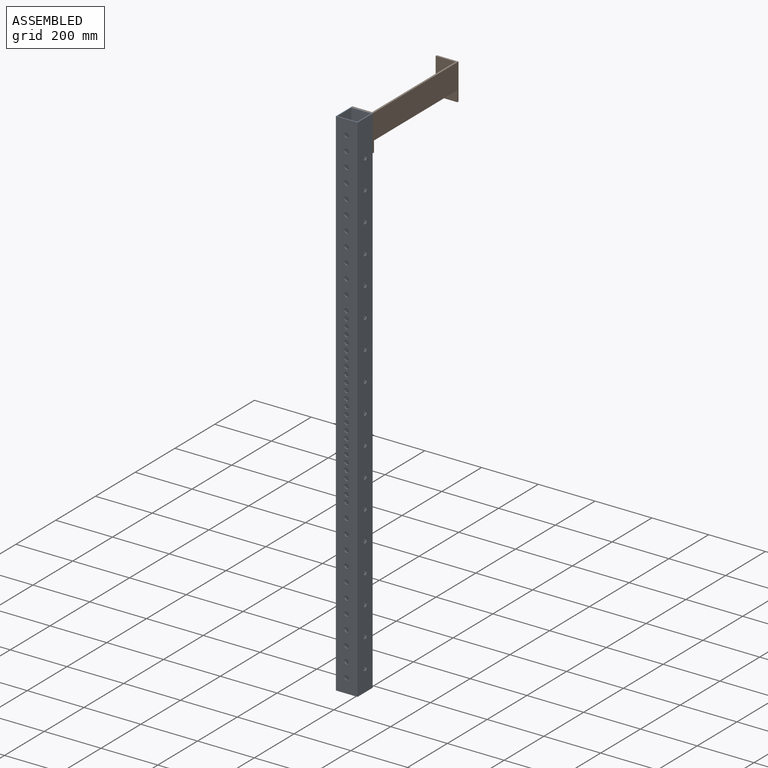
[diagram: assembled view]
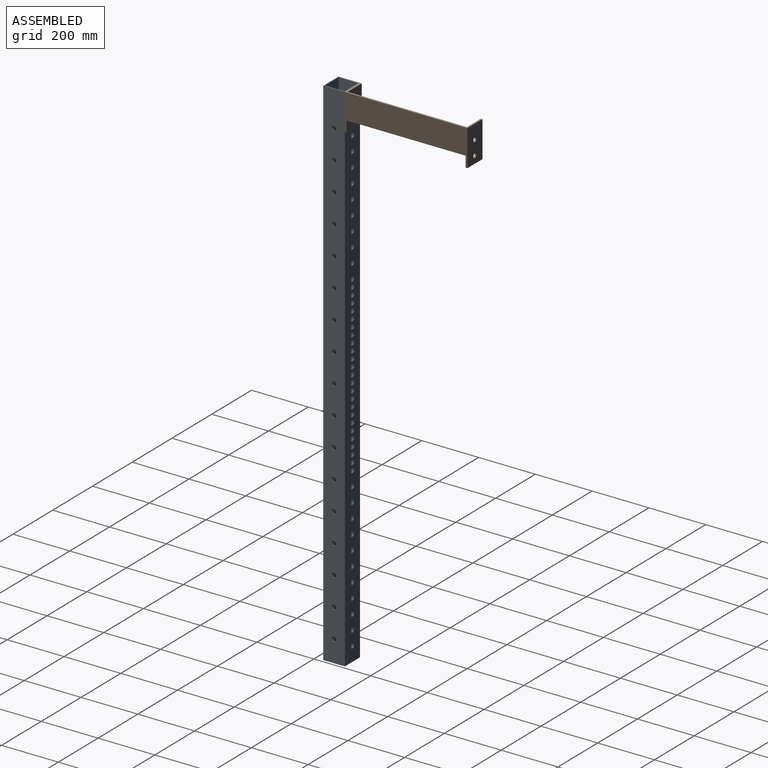
[diagram: assembled view, second angle]
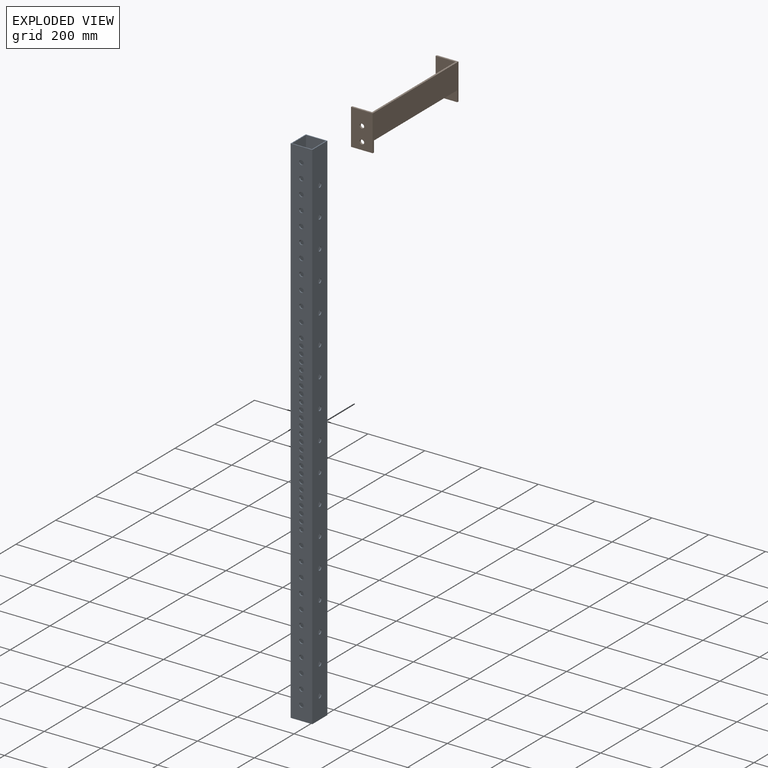
[diagram: exploded view]
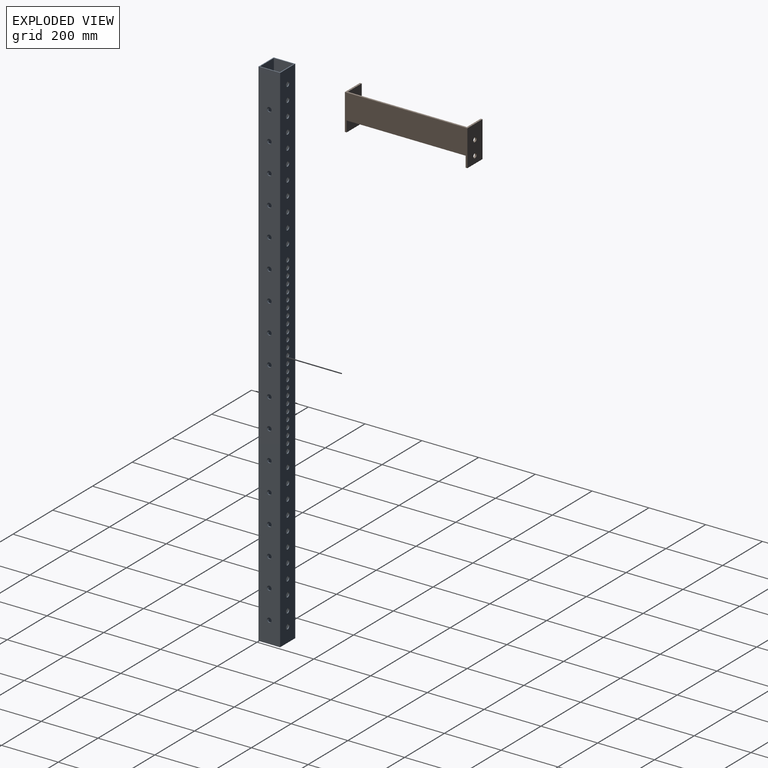
[diagram: exploded view, second angle]
ASSEMBLY  parts=2 mates=2
PART A: 138 faces, bbox 76.2x76.2x1828.8 mm
  f0: plane 1828.8x69.7mm, normal (0,1,0), area 118164.5mm2, adj f1,f7,f8,f9,f11,f13,f15,f17
  f1: plane 1828.8x69.7mm, normal (1,0,0), area 124102.5mm2, adj f0,f2,f8,f9,f105,f107,f109,f111
  f2: plane 1828.8x69.7mm, normal (0,-1,0), area 118164.5mm2, adj f1,f7,f8,f9,f10,f12,f14,f16
  f3: plane 1828.8x76.2mm, normal (-1,0,0), area 135989.7mm2, adj f4,f6,f8,f9,f105,f107,f109,f111
  f4: plane 1828.8x76.2mm, normal (0,-1,0), area 130051.7mm2, adj f3,f5,f8,f9,f11,f13,f15,f17
  f5: plane 1828.8x76.2mm, normal (1,0,0), area 135989.7mm2, adj f4,f6,f8,f9,f104,f106,f108,f110
  f6: plane 1828.8x76.2mm, normal (0,1,0), area 130051.7mm2, adj f3,f5,f8,f9,f10,f12,f14,f16
  f7: plane 1828.8x69.7mm, normal (-1,0,0), area 124102.5mm2, adj f0,f2,f8,f9,f104,f106,f108,f110
  f8: plane 76.2x76.2mm, normal (0,0,1), area 948.3mm2, adj f0,f1,f2,f3,f4,f5,f6,f7
  f9: plane 76.2x76.2mm, normal (0,0,-1), area 948.4mm2, adj f0,f1,f2,f3,f4,f5,f6,f7
  f10: cylinder r=7.94mm len=15.88mm, axis (0,-1,0), area 162.1mm2, adj f2,f6
  f11: cylinder r=7.94mm len=15.88mm, axis (0,-1,0), area 162.1mm2, adj f0,f4
  f12: cylinder r=7.94mm len=15.88mm, axis (0,-1,0), area 162.1mm2, adj f2,f6
  f13: cylinder r=7.94mm len=15.88mm, axis (0,-1,0), area 162.1mm2, adj f0,f4
  f14: cylinder r=7.94mm len=15.88mm, axis (0,-1,0), area 162.1mm2, adj f2,f6
  f15: cylinder r=7.94mm len=15.88mm, axis (0,-1,0), area 162.1mm2, adj f0,f4
  f16: cylinder r=7.94mm len=15.88mm, axis (0,-1,0), area 162.1mm2, adj f2,f6
  f17: cylinder r=7.94mm len=15.88mm, axis (0,-1,0), area 162.1mm2, adj f0,f4
  f18: cylinder r=7.94mm len=15.88mm, axis (0,-1,0), area 162.1mm2, adj f2,f6
  f19: cylinder r=7.94mm len=15.88mm, axis (0,-1,0), area 162.1mm2, adj f0,f4
  f20: cylinder r=7.94mm len=15.88mm, axis (0,-1,0), area 162.1mm2, adj f2,f6
  f21: cylinder r=7.94mm len=15.88mm, axis (0,-1,0), area 162.1mm2, adj f0,f4
  f22: cylinder r=7.94mm len=15.88mm, axis (0,-1,0), area 162.1mm2, adj f2,f6
  f23: cylinder r=7.94mm len=15.88mm, axis (0,-1,0), area 162.1mm2, adj f0,f4
  f24: cylinder r=7.94mm len=15.88mm, axis (0,-1,0), area 162.1mm2, adj f2,f6
  f25: cylinder r=7.94mm len=15.88mm, axis (0,-1,0), area 162.1mm2, adj f0,f4
  f26: cylinder r=7.94mm len=15.88mm, axis (0,-1,0), area 162.1mm2, adj f2,f6
  f27: cylinder r=7.94mm len=15.88mm, axis (0,-1,0), area 162.1mm2, adj f0,f4
  f28: cylinder r=7.94mm len=15.88mm, axis (0,-1,0), area 162.1mm2, adj f2,f6
  f29: cylinder r=7.94mm len=15.88mm, axis (0,-1,0), area 162.1mm2, adj f0,f4
  f30: cylinder r=7.94mm len=15.88mm, axis (0,-1,0), area 162.1mm2, adj f2,f6
  f31: cylinder r=7.94mm len=15.88mm, axis (0,-1,0), area 162.1mm2, adj f0,f4
  f32: cylinder r=7.94mm len=15.88mm, axis (0,-1,0), area 162.1mm2, adj f2,f6
  f33: cylinder r=7.94mm len=15.88mm, axis (0,-1,0), area 162.1mm2, adj f0,f4
  f34: cylinder r=7.94mm len=15.88mm, axis (0,-1,0), area 162.1mm2, adj f2,f6
  f35: cylinder r=7.94mm len=15.88mm, axis (0,-1,0), area 162.1mm2, adj f0,f4
  f36: cylinder r=7.94mm len=15.88mm, axis (0,-1,0), area 162.1mm2, adj f2,f6
  f37: cylinder r=7.94mm len=15.88mm, axis (0,-1,0), area 162.1mm2, adj f0,f4
  f38: cylinder r=7.94mm len=15.88mm, axis (0,-1,0), area 162.1mm2, adj f2,f6
  f39: cylinder r=7.94mm len=15.88mm, axis (0,-1,0), area 162.1mm2, adj f0,f4
  f40: cylinder r=7.94mm len=15.88mm, axis (0,-1,0), area 162.1mm2, adj f2,f6
  f41: cylinder r=7.94mm len=15.88mm, axis (0,-1,0), area 162.1mm2, adj f0,f4
  f42: cylinder r=7.94mm len=15.88mm, axis (0,-1,0), area 162.1mm2, adj f2,f6
  f43: cylinder r=7.94mm len=15.88mm, axis (0,-1,0), area 162.1mm2, adj f0,f4
  f44: cylinder r=7.94mm len=15.88mm, axis (0,-1,0), area 162.1mm2, adj f2,f6
  f45: cylinder r=7.94mm len=15.88mm, axis (0,-1,0), area 162.1mm2, adj f0,f4
  f46: cylinder r=7.94mm len=15.88mm, axis (0,-1,0), area 162.1mm2, adj f2,f6
  f47: cylinder r=7.94mm len=15.88mm, axis (0,-1,0), area 162.1mm2, adj f0,f4
  f48: cylinder r=7.94mm len=15.88mm, axis (0,-1,0), area 162.1mm2, adj f2,f6
  f49: cylinder r=7.94mm len=15.88mm, axis (0,-1,0), area 162.1mm2, adj f0,f4
  f50: cylinder r=7.94mm len=15.88mm, axis (0,-1,0), area 162.1mm2, adj f2,f6
  f51: cylinder r=7.94mm len=15.88mm, axis (0,-1,0), area 162.1mm2, adj f0,f4
  f52: cylinder r=7.94mm len=15.88mm, axis (0,-1,0), area 162.1mm2, adj f2,f6
  f53: cylinder r=7.94mm len=15.88mm, axis (0,-1,0), area 162.1mm2, adj f0,f4
  f54: cylinder r=7.94mm len=15.88mm, axis (0,-1,0), area 162.1mm2, adj f2,f6
  f55: cylinder r=7.94mm len=15.88mm, axis (0,-1,0), area 162.1mm2, adj f0,f4
  f56: cylinder r=7.94mm len=15.88mm, axis (0,-1,0), area 162.1mm2, adj f2,f6
  f57: cylinder r=7.94mm len=15.88mm, axis (0,-1,0), area 162.1mm2, adj f0,f4
  f58: cylinder r=7.94mm len=15.88mm, axis (0,-1,0), area 162.1mm2, adj f2,f6
  f59: cylinder r=7.94mm len=15.88mm, axis (0,-1,0), area 162.1mm2, adj f0,f4
  f60: cylinder r=7.94mm len=15.88mm, axis (0,-1,0), area 162.1mm2, adj f2,f6
  f61: cylinder r=7.94mm len=15.88mm, axis (0,-1,0), area 162.1mm2, adj f0,f4
  f62: cylinder r=7.94mm len=15.88mm, axis (0,-1,0), area 162.1mm2, adj f2,f6
  f63: cylinder r=7.94mm len=15.88mm, axis (0,-1,0), area 162.1mm2, adj f0,f4
  f64: cylinder r=7.94mm len=15.88mm, axis (0,-1,0), area 162.1mm2, adj f2,f6
  f65: cylinder r=7.94mm len=15.88mm, axis (0,-1,0), area 162.1mm2, adj f0,f4
  f66: cylinder r=7.94mm len=15.88mm, axis (0,-1,0), area 162.1mm2, adj f2,f6
  f67: cylinder r=7.94mm len=15.88mm, axis (0,-1,0), area 162.1mm2, adj f0,f4
  f68: cylinder r=7.94mm len=15.88mm, axis (0,-1,0), area 162.1mm2, adj f2,f6
  f69: cylinder r=7.94mm len=15.88mm, axis (0,-1,0), area 162.1mm2, adj f0,f4
  f70: cylinder r=7.94mm len=15.88mm, axis (0,-1,0), area 162.1mm2, adj f2,f6
  f71: cylinder r=7.94mm len=15.88mm, axis (0,-1,0), area 162.1mm2, adj f0,f4
  f72: cylinder r=7.94mm len=15.88mm, axis (0,-1,0), area 162.1mm2, adj f2,f6
  f73: cylinder r=7.94mm len=15.88mm, axis (0,-1,0), area 162.1mm2, adj f0,f4
  f74: cylinder r=7.94mm len=15.88mm, axis (0,-1,0), area 162.1mm2, adj f2,f6
  f75: cylinder r=7.94mm len=15.88mm, axis (0,-1,0), area 162.1mm2, adj f0,f4
  f76: cylinder r=7.94mm len=15.88mm, axis (0,-1,0), area 162.1mm2, adj f2,f6
  f77: cylinder r=7.94mm len=15.88mm, axis (0,-1,0), area 162.1mm2, adj f0,f4
  f78: cylinder r=7.94mm len=15.88mm, axis (0,-1,0), area 162.1mm2, adj f2,f6
  f79: cylinder r=7.94mm len=15.88mm, axis (0,-1,0), area 162.1mm2, adj f0,f4
  f80: cylinder r=7.94mm len=15.88mm, axis (0,-1,0), area 162.1mm2, adj f2,f6
  f81: cylinder r=7.94mm len=15.88mm, axis (0,-1,0), area 162.1mm2, adj f0,f4
  f82: cylinder r=7.94mm len=15.88mm, axis (0,-1,0), area 162.1mm2, adj f2,f6
  f83: cylinder r=7.94mm len=15.88mm, axis (0,-1,0), area 162.1mm2, adj f0,f4
  f84: cylinder r=7.94mm len=15.88mm, axis (0,-1,0), area 162.1mm2, adj f2,f6
  f85: cylinder r=7.94mm len=15.88mm, axis (0,-1,0), area 162.1mm2, adj f0,f4
  f86: cylinder r=7.94mm len=15.88mm, axis (0,-1,0), area 162.1mm2, adj f2,f6
  f87: cylinder r=7.94mm len=15.88mm, axis (0,-1,0), area 162.1mm2, adj f0,f4
  f88: cylinder r=7.94mm len=15.88mm, axis (0,-1,0), area 162.1mm2, adj f2,f6
  f89: cylinder r=7.94mm len=15.88mm, axis (0,-1,0), area 162.1mm2, adj f0,f4
  f90: cylinder r=7.94mm len=15.88mm, axis (0,-1,0), area 162.1mm2, adj f2,f6
  f91: cylinder r=7.94mm len=15.88mm, axis (0,-1,0), area 162.1mm2, adj f0,f4
  f92: cylinder r=7.94mm len=15.88mm, axis (0,-1,0), area 162.1mm2, adj f2,f6
  f93: cylinder r=7.94mm len=15.88mm, axis (0,-1,0), area 162.1mm2, adj f0,f4
  f94: cylinder r=7.94mm len=15.88mm, axis (0,-1,0), area 162.1mm2, adj f2,f6
  f95: cylinder r=7.94mm len=15.88mm, axis (0,-1,0), area 162.1mm2, adj f0,f4
  f96: cylinder r=7.94mm len=15.88mm, axis (0,-1,0), area 162.1mm2, adj f2,f6
  f97: cylinder r=7.94mm len=15.88mm, axis (0,-1,0), area 162.1mm2, adj f0,f4
  f98: cylinder r=7.94mm len=15.88mm, axis (0,-1,0), area 162.1mm2, adj f2,f6
  f99: cylinder r=7.94mm len=15.88mm, axis (0,-1,0), area 162.1mm2, adj f0,f4
  f100: cylinder r=7.94mm len=15.88mm, axis (0,-1,0), area 162.1mm2, adj f2,f6
  f101: cylinder r=7.94mm len=15.88mm, axis (0,-1,0), area 162.1mm2, adj f0,f4
  f102: cylinder r=7.94mm len=15.88mm, axis (0,-1,0), area 162.1mm2, adj f2,f6
  f103: cylinder r=7.94mm len=15.88mm, axis (0,-1,0), area 162.1mm2, adj f0,f4
  f104: cylinder r=7.94mm len=15.88mm, axis (-1,0,0), area 162.1mm2, adj f5,f7
  f105: cylinder r=7.94mm len=15.88mm, axis (-1,0,0), area 162.1mm2, adj f1,f3
  f106: cylinder r=7.94mm len=15.88mm, axis (-1,0,0), area 162.1mm2, adj f5,f7
  f107: cylinder r=7.94mm len=15.88mm, axis (-1,0,0), area 162.1mm2, adj f1,f3
  f108: cylinder r=7.94mm len=15.88mm, axis (-1,0,0), area 162.1mm2, adj f5,f7
  f109: cylinder r=7.94mm len=15.88mm, axis (-1,0,0), area 162.1mm2, adj f1,f3
  f110: cylinder r=7.94mm len=15.88mm, axis (-1,0,0), area 162.1mm2, adj f5,f7
  f111: cylinder r=7.94mm len=15.88mm, axis (-1,0,0), area 162.1mm2, adj f1,f3
  f112: cylinder r=7.94mm len=15.88mm, axis (-1,0,0), area 162.1mm2, adj f5,f7
  f113: cylinder r=7.94mm len=15.88mm, axis (-1,0,0), area 162.1mm2, adj f1,f3
  f114: cylinder r=7.94mm len=15.88mm, axis (-1,0,0), area 162.1mm2, adj f5,f7
  f115: cylinder r=7.94mm len=15.88mm, axis (-1,0,0), area 162.1mm2, adj f1,f3
  f116: cylinder r=7.94mm len=15.88mm, axis (-1,0,0), area 162.1mm2, adj f5,f7
  f117: cylinder r=7.94mm len=15.88mm, axis (-1,0,0), area 162.1mm2, adj f1,f3
  f118: cylinder r=7.94mm len=15.88mm, axis (-1,0,0), area 162.1mm2, adj f5,f7
  f119: cylinder r=7.94mm len=15.88mm, axis (-1,0,0), area 162.1mm2, adj f1,f3
  f120: cylinder r=7.94mm len=15.88mm, axis (-1,0,0), area 162.1mm2, adj f5,f7
  f121: cylinder r=7.94mm len=15.88mm, axis (-1,0,0), area 162.1mm2, adj f1,f3
  f122: cylinder r=7.94mm len=15.88mm, axis (-1,0,0), area 162.1mm2, adj f5,f7
  f123: cylinder r=7.94mm len=15.88mm, axis (-1,0,0), area 162.1mm2, adj f1,f3
  f124: cylinder r=7.94mm len=15.88mm, axis (-1,0,0), area 162.1mm2, adj f5,f7
  f125: cylinder r=7.94mm len=15.88mm, axis (-1,0,0), area 162.1mm2, adj f1,f3
  f126: cylinder r=7.94mm len=15.88mm, axis (-1,0,0), area 162.1mm2, adj f5,f7
  f127: cylinder r=7.94mm len=15.88mm, axis (-1,0,0), area 162.1mm2, adj f1,f3
  f128: cylinder r=7.94mm len=15.88mm, axis (-1,0,0), area 162.1mm2, adj f5,f7
  f129: cylinder r=7.94mm len=15.88mm, axis (-1,0,0), area 162.1mm2, adj f1,f3
  f130: cylinder r=7.94mm len=15.88mm, axis (-1,0,0), area 162.1mm2, adj f5,f7
  f131: cylinder r=7.94mm len=15.88mm, axis (-1,0,0), area 162.1mm2, adj f1,f3
  f132: cylinder r=7.94mm len=15.88mm, axis (-1,0,0), area 162.1mm2, adj f5,f7
  f133: cylinder r=7.94mm len=15.88mm, axis (-1,0,0), area 162.1mm2, adj f1,f3
  f134: cylinder r=7.94mm len=15.88mm, axis (-1,0,0), area 162.1mm2, adj f5,f7
  f135: cylinder r=7.94mm len=15.88mm, axis (-1,0,0), area 162.1mm2, adj f1,f3
  f136: cylinder r=7.94mm len=15.88mm, axis (-1,0,0), area 162.1mm2, adj f5,f7
  f137: cylinder r=7.94mm len=15.88mm, axis (-1,0,0), area 162.1mm2, adj f1,f3
PART B: 16 faces, bbox 76.2x431.8x127 mm
  f0: plane 76.2x6.35mm, normal (0,0,-1), area 483.9mm2, adj f2,f3,f4,f8
  f1: plane 419.1x88.9mm, normal (-1,0,0), area 37258mm2, adj f4,f5,f10,f15
  f2: plane 431.8x127mm, normal (1,0,0), area 38870.9mm2, adj f0,f4,f5,f7,f8,f9,f10,f15
  f3: plane 127x6.35mm, normal (-1,0,0), area 806.5mm2, adj f0,f4,f8,f10
  f4: plane 127x76.2mm, normal (0,-1,0), area 8717mm2, adj f0,f1,f2,f3,f10,f11,f13,f15
  f5: plane 127x76.2mm, normal (0,1,0), area 8717mm2, adj f1,f2,f6,f9,f10,f12,f14,f15
  f6: plane 127x6.35mm, normal (-1,0,0), area 806.5mm2, adj f5,f7,f9,f10
  f7: plane 127x76.2mm, normal (0,-1,0), area 9281.5mm2, adj f2,f6,f9,f10,f12,f14
  f8: plane 127x76.2mm, normal (0,1,0), area 9281.5mm2, adj f0,f2,f3,f10,f11,f13
  f9: plane 76.2x6.35mm, normal (0,0,-1), area 483.9mm2, adj f2,f5,f6,f7
  f10: plane 431.8x76.2mm, normal (0,0,1), area 3629mm2, adj f1,f2,f3,f4,f5,f6,f7,f8
  f11: cylinder r=7.94mm len=15.88mm, axis (0,1,0), area 316.7mm2, adj f4,f8
  f12: cylinder r=7.94mm len=15.88mm, axis (0,1,0), area 316.7mm2, adj f5,f7
  f13: cylinder r=7.94mm len=15.88mm, axis (0,1,0), area 316.7mm2, adj f4,f8
  f14: cylinder r=7.94mm len=15.88mm, axis (0,1,0), area 316.7mm2, adj f5,f7
  f15: plane 419.1x6.35mm, normal (0,0,-1), area 2661.3mm2, adj f1,f2,f4,f5
PLACE A t=(564.33,261.49,-986.73)mm fixed
PLACE B rot(axis=(1,0,0),0deg) t=(640.53,769.49,842.07)mm
MATE revolute A.f78 <-> B.f11  axis (0,1,0) through (602.43,337.69,791.27)mm
MATE revolute A.f76 <-> B.f13  axis (0,1,0) through (602.43,337.69,740.47)mm
